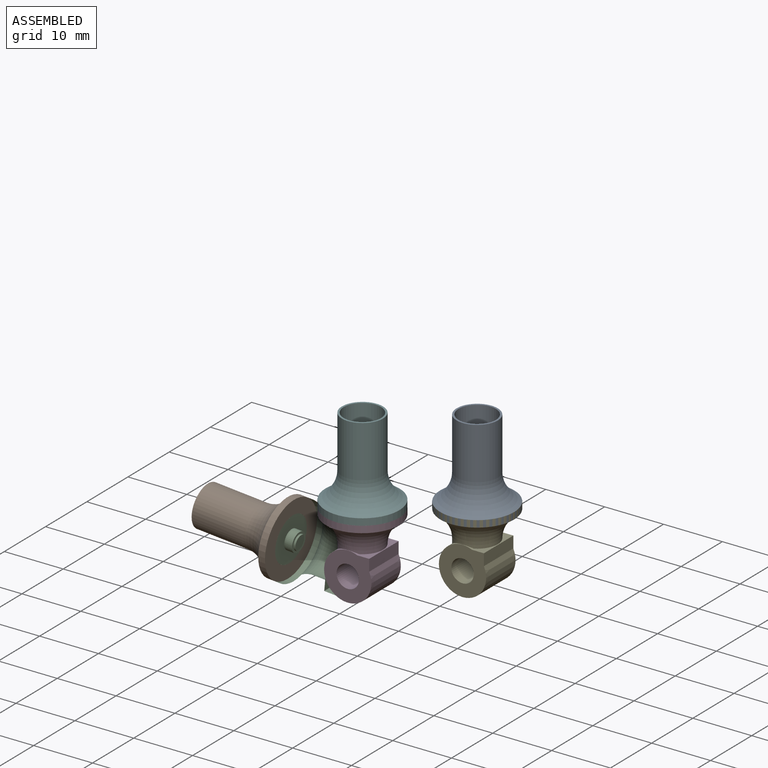
[diagram: assembled view]
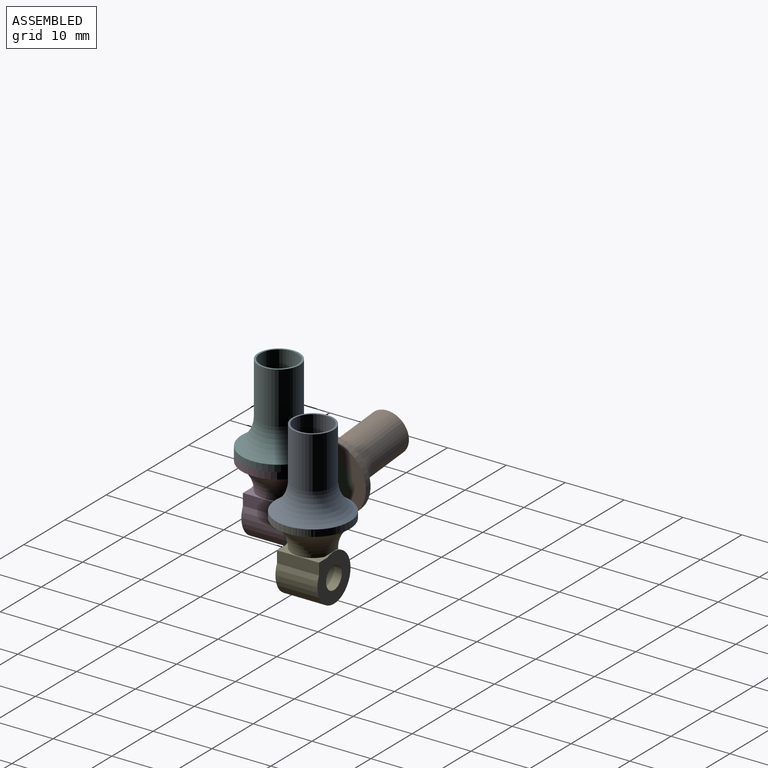
[diagram: assembled view, second angle]
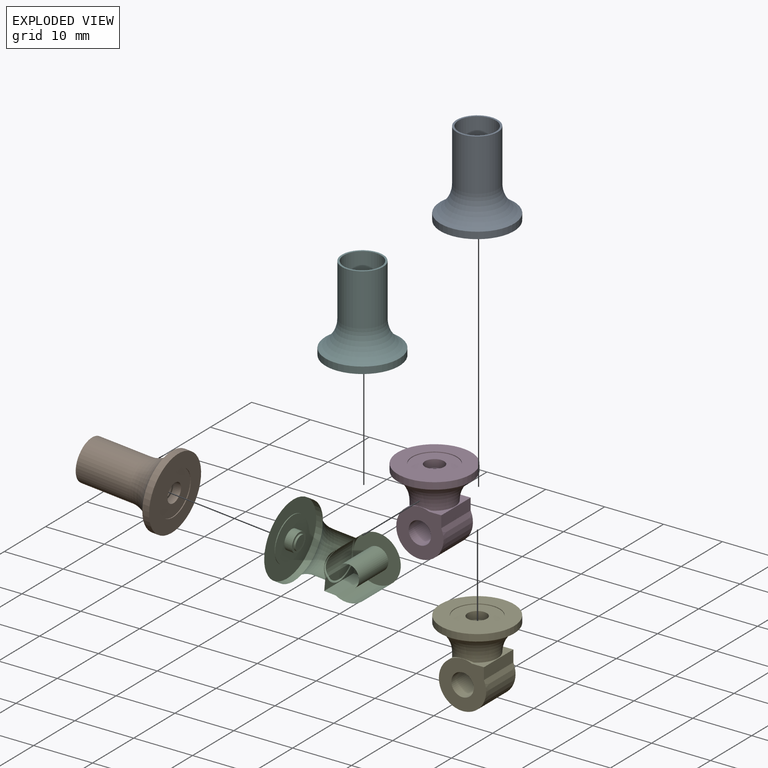
[diagram: exploded view]
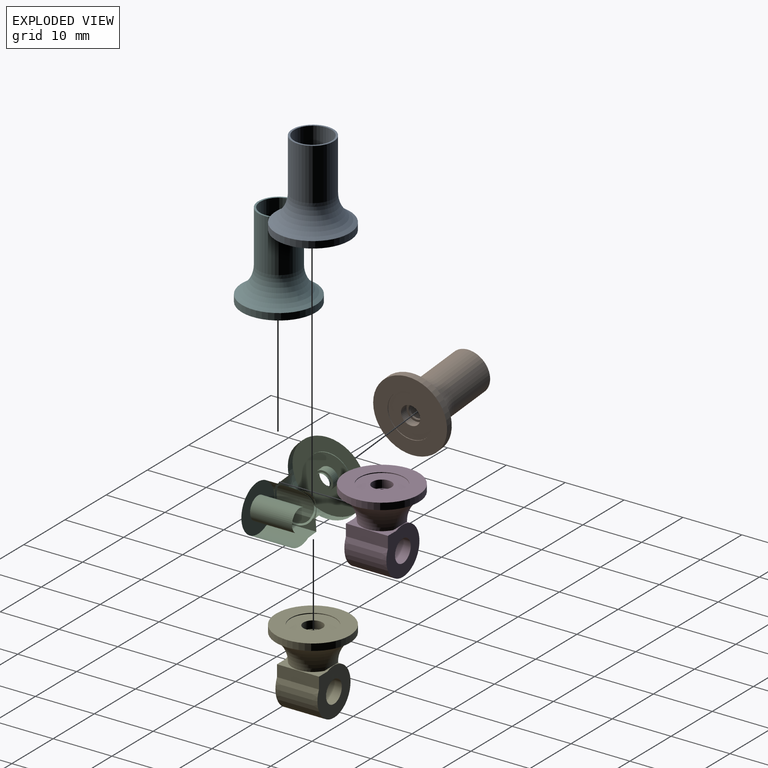
[diagram: exploded view, second angle]
ASSEMBLY  parts=6 mates=4
PART A: 12 faces, bbox 18.6x18.6x14.5 mm
  f0: cylinder r=1.63mm len=3.27mm, axis (0,0,-1), area 13.6mm2, adj f6,f10
  f1: cylinder r=1.27mm len=2.54mm, axis (0,0,-1), area 2.6mm2, adj f5,f6
  f2: cylinder r=3.17mm len=12.7mm, axis (0,0,-1), area 253.4mm2, adj f4,f5
  f3: cylinder r=3.5mm len=8.81mm, axis (0,0,-1), area 193.6mm2, adj f4,f9
  f4: plane 6.99x6.99mm, normal (0,0,1), area 6.8mm2, adj f2,f3
  f5: plane 6.35x6.35mm, normal (0,0,1), area 26.6mm2, adj f1,f2
  f6: plane 3.27x3.27mm, normal (0,0,-1), area 3.3mm2, adj f0,f1
  f7: plane 12.54x12.54mm, normal (0,0,-1), area 77.9mm2, adj f8,f11
  f8: cylinder r=6.27mm len=12.54mm, axis (0,0,1), area 45mm2, adj f7,f9
  f9: torus R=8.58mm, axis (0,0,-1), area 156.5mm2, adj f3,f8
  f10: plane 7.62x7.62mm, normal (0,0,-1), area 37.2mm2, adj f0,f11
  f11: cylinder r=3.81mm len=7.62mm, axis (0,0,-1), area 3mm2, adj f7,f10
PART B: same geometry as A
PART C: 29 faces, bbox 31.3x31.3x29 mm
  f0: cylinder r=3.17mm len=6.35mm, axis (0,0,-1), area 3.1mm2, adj f1,f2,f3
  f1: plane 18.16x14.26mm, normal (0,0,1), area 6mm2, adj f0,f2
  f2: plane 18.16x12.7mm, normal (1,0,0), area 0mm2, adj f0,f1,f3
  f3: extruded ~6.35x4.79mm, area 27.6mm2, adj f0,f2
  f4: cylinder r=1.63mm len=3.27mm, axis (0,0,-1), area 13.6mm2, adj f5,f6
  f5: plane 3.27x3.27mm, normal (0,0,1), area 3.3mm2, adj f4,f7
  f6: plane 7.62x7.62mm, normal (0,0,1), area 37.2mm2, adj f4,f8
  f7: cylinder r=1.27mm len=2.54mm, axis (0,0,-1), area 2.6mm2, adj f5,f9
  f8: cylinder r=3.81mm len=7.62mm, axis (0,0,-1), area 3mm2, adj f6,f10
  f9: plane 19.05x19.05mm, normal (0,0,-1), area 26.6mm2, adj f7,f11
  f10: plane 12.54x12.54mm, normal (0,0,1), area 77.9mm2, adj f8,f12
  f11: cylinder r=3.17mm len=4.79mm, axis (0,0,-1), area 0mm2, adj f9
  f12: cylinder r=6.27mm len=12.54mm, axis (0,0,1), area 45mm2, adj f10,f13
  f13: torus R=8.58mm, axis (0,0,-1), area 156.5mm2, adj f12,f14
  f14: cylinder r=3.5mm len=6.99mm, axis (0,0,-1), area 71.1mm2, adj f13,f15,f16,f17,f18
  f15: extruded ~7.14x5.26mm, area 11.2mm2, adj f14,f16,f18,f19,f20,f21
  f16: plane 0.47x0mm, normal (1,0,0), area 0mm2, adj f14,f15,f17
  f17: plane 7.14x2.02mm, normal (0,0,1), area 6.1mm2, adj f14,f16,f18,f19,f21,f22
  f18: plane 0.47x0mm, normal (1,0,0), area 0mm2, adj f14,f15,f17
  f19: plane 7.28x2.32mm, normal (0,1,0), area 13.4mm2, adj f15,f17,f22,f23,f24
  f20: extruded ~7.14x3.41mm, area 25.1mm2, adj f15,f21,f25,f26
  f21: plane 8.03x8.03mm, normal (0,-1,0), area 40.8mm2, adj f15,f17,f20,f22,f24,f26,f27
  f22: plane 7.14x1.98mm, normal (-1,0,0), area 14.1mm2, adj f17,f19,f21,f27
  f23: plane 7.28x5.72mm, normal (0,1,0), area 25.7mm2, adj f19,f24,f25,f26,f28
  f24: cylinder r=1.91mm len=7.14mm, axis (0,-1,0), area 85.4mm2, adj f19,f21,f23
  f25: plane 3.41x0.38mm, normal (0,1,0), area 0.9mm2, adj f20,f23
  f26: cylinder r=4.02mm len=7.28mm, axis (0,1,0), area 65mm2, adj f20,f21,f23,f27
  f27: extruded ~7.14x3.41mm, area 25.1mm2, adj f21,f22,f26,f28
  f28: plane 3.41x0.38mm, normal (0,1,0), area 0.9mm2, adj f23,f27
PART D: 30 faces, bbox 31.3x31.3x26.1 mm
  f0: cylinder r=3.5mm len=3.1mm, axis (0,0,-1), area 0mm2, adj f1,f2
  f1: torus R=8.58mm, axis (0,0,-1), area 155mm2, adj f0,f2,f3,f4
  f2: extruded ~7.14x5.26mm, area 13.3mm2, adj f0,f1,f4,f5,f6,f7,f8,f9
  f3: cylinder r=6.27mm len=12.54mm, axis (0,0,1), area 45mm2, adj f1,f10
  f4: cylinder r=3.5mm len=6.21mm, axis (0,0,-1), area 0mm2, adj f1,f2,f5,f9,f11
  f5: plane 0.47x0mm, normal (-1,0,0), area 0mm2, adj f2,f4,f11
  f6: plane 7.28x2.32mm, normal (0,-1,0), area 13.4mm2, adj f2,f11,f12,f13,f14
  f7: extruded ~7.14x3.41mm, area 25.1mm2, adj f2,f8,f15,f16
  f8: plane 8.03x8.03mm, normal (0,1,0), area 40.8mm2, adj f2,f7,f11,f12,f14,f16,f17
  f9: plane 0.47x0mm, normal (-1,0,0), area 0mm2, adj f2,f4,f11
  f10: plane 12.54x12.54mm, normal (0,0,-1), area 77.9mm2, adj f3,f18
  f11: plane 7.14x2.02mm, normal (0,0,-1), area 6.1mm2, adj f4,f5,f6,f8,f9,f12
  f12: plane 7.14x1.98mm, normal (1,0,0), area 14.1mm2, adj f6,f8,f11,f17
  f13: plane 7.28x5.72mm, normal (0,-1,0), area 25.7mm2, adj f6,f14,f15,f16,f19
  f14: cylinder r=1.91mm len=7.14mm, axis (0,-1,0), area 85.4mm2, adj f6,f8,f13
  f15: plane 3.41x0.38mm, normal (0,-1,0), area 0.9mm2, adj f7,f13
  f16: cylinder r=4.02mm len=7.28mm, axis (0,1,0), area 65mm2, adj f7,f8,f13,f17
  f17: extruded ~7.14x3.41mm, area 25.1mm2, adj f8,f12,f16,f19
  f18: cylinder r=3.81mm len=7.62mm, axis (0,0,-1), area 3mm2, adj f10,f20
  f19: plane 3.41x0.38mm, normal (0,-1,0), area 0.9mm2, adj f13,f17
  f20: plane 7.62x7.62mm, normal (0,0,-1), area 37.2mm2, adj f18,f21
  f21: cylinder r=1.63mm len=3.27mm, axis (0,0,-1), area 13.6mm2, adj f20,f22
  f22: plane 3.27x3.27mm, normal (0,0,-1), area 3.3mm2, adj f21,f23
  f23: cylinder r=1.27mm len=2.54mm, axis (0,0,-1), area 2.6mm2, adj f22,f24
  f24: plane 19.05x19.05mm, normal (0,0,1), area 26.6mm2, adj f23,f25
  f25: cylinder r=3.17mm len=4.79mm, axis (0,0,-1), area 0mm2, adj f24
  f26: cylinder r=3.17mm len=6.35mm, axis (0,0,-1), area 3.1mm2, adj f27,f28,f29
  f27: plane 18.16x14.26mm, normal (0,0,1), area 6mm2, adj f26,f28
  f28: plane 18.16x12.7mm, normal (1,0,0), area 0mm2, adj f26,f27,f29
  f29: extruded ~6.35x4.79mm, area 27.6mm2, adj f26,f28
PART E: same geometry as D
PART F: same geometry as A
PLACE A rot(axis=(1,0,0),0deg) t=(3.46,15.58,-0.51)mm
PLACE B rot(axis=(0.67,-0.08,-0.74),169.9deg) t=(-20.82,2.54,-7.87)mm
PLACE C rot(axis=(0,1,0),95.2deg) t=(-17.41,2.54,-8.18)mm
PLACE D rot(axis=(1,0,0),180deg) t=(-6.91,2.54,-1.57)mm fixed
PLACE E rot(axis=(-1,0,0),180deg) t=(3.46,15.58,-2.93)mm
PLACE F rot(axis=(1,0,0),0deg) t=(-6.91,2.54,1.98)mm
MATE revolute C.f24 <-> D.f14  axis (0,-1,0) through (-6.91,6.1,-9.14)mm
MATE revolute A.f8 <-> E.f1  axis (0,0,-1) through (3.46,15.58,-2.29)mm
MATE revolute F.f8 <-> D.f1  axis (0,0,-1) through (-6.91,2.54,0.21)mm
MATE revolute C.f4 <-> B.f8  axis (-1,0,0.09) through (-19.05,2.54,-8.03)mm
